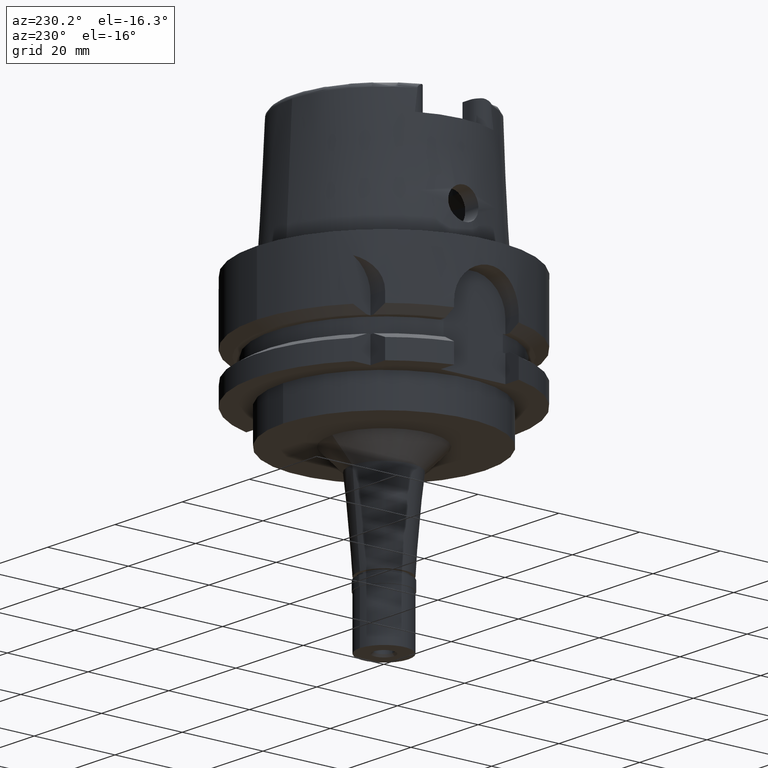
[diagram: clean part render]
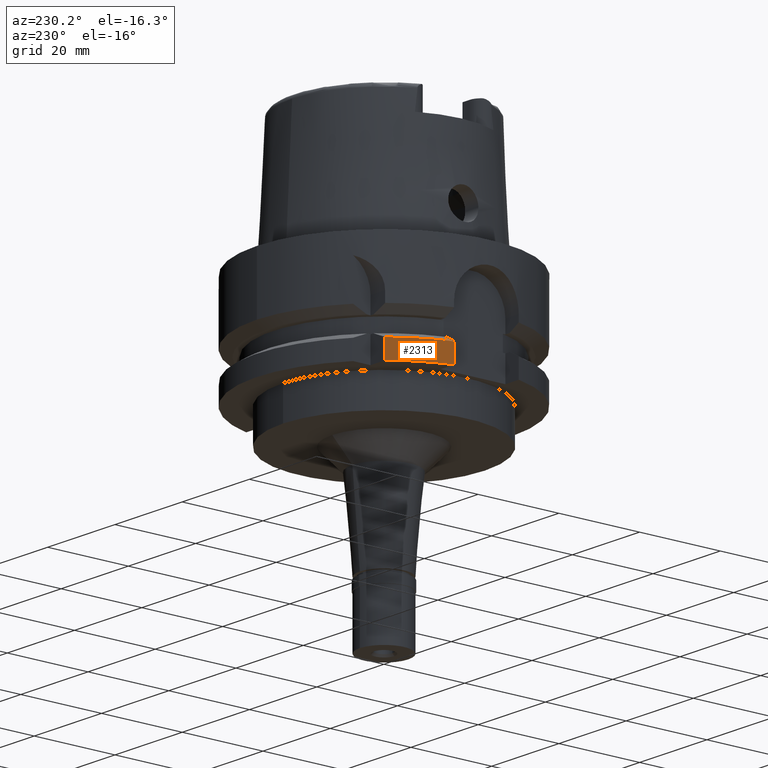
[diagram: same view with one face highlighted and labeled with its STEP entity id]
A machine part, auxiliary view. The second image highlights one B-rep face of the part: STEP entity #2313.
In plain terms, the highlighted cylindrical surface (partial cylindrical patch) has radius 31.5 mm, axis along (0, 0, -1).
Its self-contained STEP definition (entity closure, byte-faithful):
#41 = EDGE_LOOP ( 'NONE', ( #2681, #1765, #2753, #2449 ) ) ;
#173 = AXIS2_PLACEMENT_3D ( 'NONE', #2460, #3822, #5509 ) ;
#362 = VERTEX_POINT ( 'NONE', #2479 ) ;
#517 = AXIS2_PLACEMENT_3D ( 'NONE', #3149, #3699, #4948 ) ;
#609 = FACE_OUTER_BOUND ( 'NONE', #41, .T. ) ;
#818 = LINE ( 'NONE', #3097, #3953 ) ;
#1107 = DIRECTION ( 'NONE',  ( 0.0000000000000000000, 0.0000000000000000000, 1.000000000000000000 ) ) ;
#1313 = VERTEX_POINT ( 'NONE', #4741 ) ;
#1616 = EDGE_CURVE ( 'NONE', #1313, #362, #4885, .T. ) ;
#1765 = ORIENTED_EDGE ( 'NONE', *, *, #1882, .F. ) ;
#1882 = EDGE_CURVE ( 'NONE', #3620, #362, #4627, .T. ) ;
#2096 = CARTESIAN_POINT ( 'NONE',  ( -30.46719534897000159, 8.000000472994999612, -21.37750336855000199 ) ) ;
#2313 = ADVANCED_FACE ( 'NONE', ( #609 ), #5436, .T. ) ;
#2449 = ORIENTED_EDGE ( 'NONE', *, *, #3523, .F. ) ;
#2458 = DIRECTION ( 'NONE',  ( -2.686802759623970143E-08, -1.023244762196988429E-07, -0.9999999999999944489 ) ) ;
#2460 = CARTESIAN_POINT ( 'NONE',  ( 0.0000000000000000000, 0.0000000000000000000, -21.37749907476000288 ) ) ;
#2479 = CARTESIAN_POINT ( 'NONE',  ( -30.46719547316000032, 8.000000000000000000, -26.00000000000000000 ) ) ;
#2588 = DIRECTION ( 'NONE',  ( -0.0000000000000000000, -0.0000000000000000000, 1.000000000000000000 ) ) ;
#2681 = ORIENTED_EDGE ( 'NONE', *, *, #1616, .T. ) ;
#2753 = ORIENTED_EDGE ( 'NONE', *, *, #2907, .T. ) ;
#2907 = EDGE_CURVE ( 'NONE', #3620, #5536, #5543, .T. ) ;
#3097 = CARTESIAN_POINT ( 'NONE',  ( -24.33618704727594917, 20.00000000000000000, 37.15000000000000568 ) ) ;
#3149 = CARTESIAN_POINT ( 'NONE',  ( 0.0000000000000000000, 1.679603085030999862E-14, 37.15000000000000568 ) ) ;
#3255 = CARTESIAN_POINT ( 'NONE',  ( 0.0000000000000000000, 1.679603085030999862E-14, -26.00000000000000000 ) ) ;
#3523 = EDGE_CURVE ( 'NONE', #1313, #5536, #818, .T. ) ;
#3620 = VERTEX_POINT ( 'NONE', #2096 ) ;
#3699 = DIRECTION ( 'NONE',  ( 0.0000000000000000000, 0.0000000000000000000, -1.000000000000000000 ) ) ;
#3822 = DIRECTION ( 'NONE',  ( 0.0000000000000000000, 0.0000000000000000000, -1.000000000000000000 ) ) ;
#3953 = VECTOR ( 'NONE', #2588, 1000.000000000000000 ) ;
#4343 = VECTOR ( 'NONE', #2458, 1000.000000000000000 ) ;
#4627 = LINE ( 'NONE', #5561, #4343 ) ;
#4741 = CARTESIAN_POINT ( 'NONE',  ( -24.33618704727619786, 19.99999999999964828, -26.00000000000000000 ) ) ;
#4885 = CIRCLE ( 'NONE', #5621, 31.50000000000000711 ) ;
#4948 = DIRECTION ( 'NONE',  ( 0.0000000000000000000, -1.000000000000000000, 0.0000000000000000000 ) ) ;
#5023 = DIRECTION ( 'NONE',  ( -0.7725773665802099233, 0.6349206349206079070, 0.0000000000000000000 ) ) ;
#5436 = CYLINDRICAL_SURFACE ( 'NONE', #517, 31.50000000000000000 ) ;
#5509 = DIRECTION ( 'NONE',  ( -0.9672125547036138915, 0.2539682539683034701, 0.0000000000000000000 ) ) ;
#5536 = VERTEX_POINT ( 'NONE', #5544 ) ;
#5543 = CIRCLE ( 'NONE', #173, 31.50000000000000000 ) ;
#5544 = CARTESIAN_POINT ( 'NONE',  ( -24.33617572677999874, 20.00001377486999843, -21.37754845807999615 ) ) ;
#5561 = CARTESIAN_POINT ( 'NONE',  ( -30.46719534897000159, 8.000000472994999612, -21.37750336855000199 ) ) ;
#5621 = AXIS2_PLACEMENT_3D ( 'NONE', #3255, #1107, #5023 ) ;